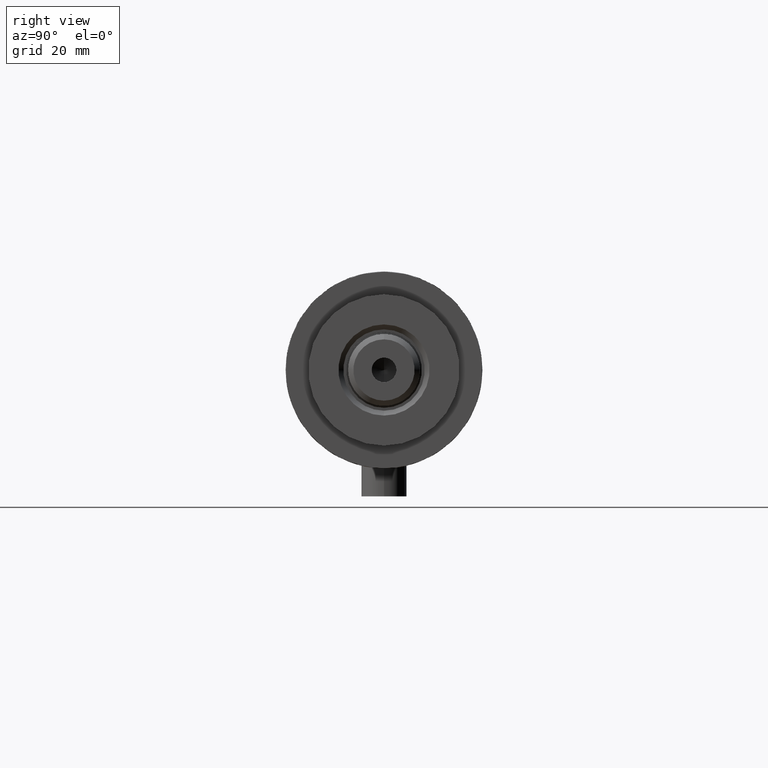
[diagram: clean part render]
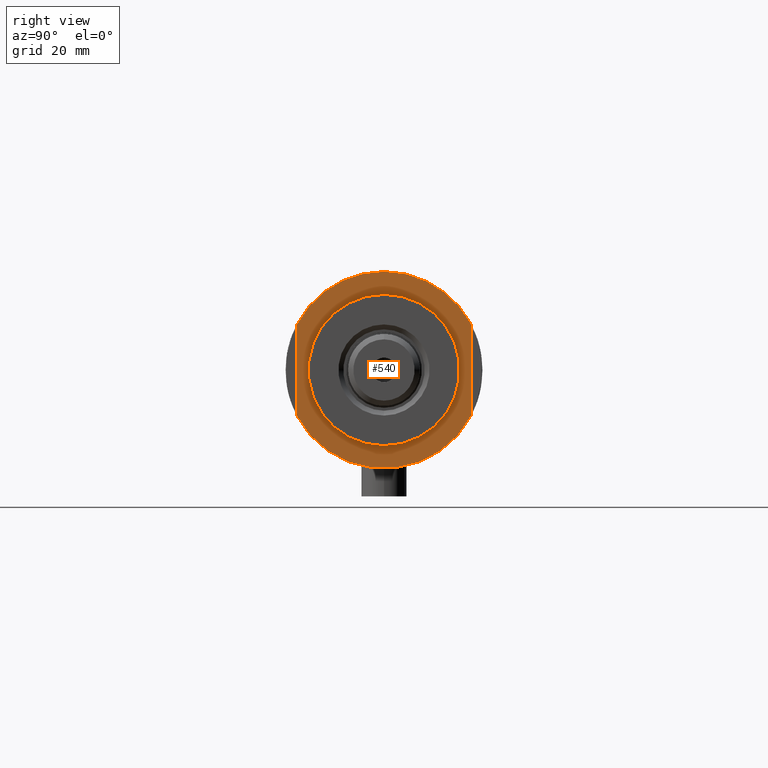
[diagram: same view with one face highlighted and labeled with its STEP entity id]
A machine part, right view. The second image highlights one B-rep face of the part: STEP entity #540.
In plain terms, the highlighted planar face has unit normal (1, 0, -0).
Its self-contained STEP definition (entity closure, byte-faithful):
#13 = DIRECTION ( 'NONE',  ( 1.000000000000000000, 0.000000000000000000, 0.000000000000000000 ) ) ;
#37 = CIRCLE ( 'NONE', #1951, 20.00000000000000000 ) ;
#38 = CARTESIAN_POINT ( 'NONE',  ( 0.000000000000000000, 0.000000000000000000, 15.50000000000000000 ) ) ;
#182 = ORIENTED_EDGE ( 'NONE', *, *, #1118, .T. ) ;
#203 = EDGE_CURVE ( 'NONE', #3485, #291, #37, .T. ) ;
#228 = CARTESIAN_POINT ( 'NONE',  ( 0.000000000000000000, 0.000000000000000000, 15.50000000000000000 ) ) ;
#286 = CARTESIAN_POINT ( 'NONE',  ( -12.12435565298215145, -22.99999999999999645, 15.50000000000000000 ) ) ;
#291 = VERTEX_POINT ( 'NONE', #4531 ) ;
#344 = VERTEX_POINT ( 'NONE', #3799 ) ;
#360 = ORIENTED_EDGE ( 'NONE', *, *, #2401, .T. ) ;
#533 = ORIENTED_EDGE ( 'NONE', *, *, #1587, .F. ) ;
#540 = ADVANCED_FACE ( 'NONE', ( #3999, #4143 ), #1200, .T. ) ;
#723 = DIRECTION ( 'NONE',  ( -1.000000000000000000, -0.000000000000000000, -0.000000000000000000 ) ) ;
#838 = DIRECTION ( 'NONE',  ( 0.000000000000000000, 0.000000000000000000, 1.000000000000000000 ) ) ;
#970 = CARTESIAN_POINT ( 'NONE',  ( 0.000000000000000000, 0.000000000000000000, 15.50000000000000000 ) ) ;
#1016 = EDGE_LOOP ( 'NONE', ( #533, #4061, #3821, #182, #360 ) ) ;
#1087 = LINE ( 'NONE', #286, #2188 ) ;
#1118 = EDGE_CURVE ( 'NONE', #1323, #5130, #2220, .T. ) ;
#1196 = CARTESIAN_POINT ( 'NONE',  ( -12.12435565298215145, 23.00000000000000355, 15.50000000000000000 ) ) ;
#1200 = PLANE ( 'NONE',  #4826 ) ;
#1323 = VERTEX_POINT ( 'NONE', #3228 ) ;
#1536 = CARTESIAN_POINT ( 'NONE',  ( 0.000000000000000000, 0.000000000000000000, 15.50000000000000000 ) ) ;
#1587 = EDGE_CURVE ( 'NONE', #1639, #4187, #1087, .T. ) ;
#1639 = VERTEX_POINT ( 'NONE', #5127 ) ;
#1661 = CARTESIAN_POINT ( 'NONE',  ( 20.00000000000000000, 0.000000000000000000, 15.50000000000000000 ) ) ;
#1693 = DIRECTION ( 'NONE',  ( 0.000000000000000000, 0.000000000000000000, 1.000000000000000000 ) ) ;
#1879 = AXIS2_PLACEMENT_3D ( 'NONE', #970, #3794, #4980 ) ;
#1885 = AXIS2_PLACEMENT_3D ( 'NONE', #38, #4030, #13 ) ;
#1950 = DIRECTION ( 'NONE',  ( 1.000000000000000000, 0.000000000000000000, 0.000000000000000000 ) ) ;
#1951 = AXIS2_PLACEMENT_3D ( 'NONE', #228, #3459, #2638 ) ;
#2188 = VECTOR ( 'NONE', #723, 1000.000000000000000 ) ;
#2220 = CIRCLE ( 'NONE', #1879, 26.00000000000000355 ) ;
#2338 = ORIENTED_EDGE ( 'NONE', *, *, #3250, .T. ) ;
#2401 = EDGE_CURVE ( 'NONE', #5130, #4187, #2808, .T. ) ;
#2638 = DIRECTION ( 'NONE',  ( 1.000000000000000000, 0.000000000000000000, 0.000000000000000000 ) ) ;
#2736 = LINE ( 'NONE', #1196, #5120 ) ;
#2808 = CIRCLE ( 'NONE', #1885, 26.00000000000000355 ) ;
#2811 = CARTESIAN_POINT ( 'NONE',  ( 0.000000000000000000, 0.000000000000000000, 15.50000000000000000 ) ) ;
#3014 = AXIS2_PLACEMENT_3D ( 'NONE', #3688, #838, #4498 ) ;
#3051 = DIRECTION ( 'NONE',  ( -0.000000000000000000, -0.000000000000000000, -1.000000000000000000 ) ) ;
#3228 = CARTESIAN_POINT ( 'NONE',  ( -12.12435565298214613, 23.00000000000000355, 15.50000000000000000 ) ) ;
#3250 = EDGE_CURVE ( 'NONE', #291, #3485, #4839, .T. ) ;
#3459 = DIRECTION ( 'NONE',  ( -0.000000000000000000, -0.000000000000000000, -1.000000000000000000 ) ) ;
#3485 = VERTEX_POINT ( 'NONE', #1661 ) ;
#3578 = EDGE_LOOP ( 'NONE', ( #4438, #2338 ) ) ;
#3688 = CARTESIAN_POINT ( 'NONE',  ( 0.000000000000000000, 0.000000000000000000, 15.50000000000000000 ) ) ;
#3794 = DIRECTION ( 'NONE',  ( 0.000000000000000000, 0.000000000000000000, 1.000000000000000000 ) ) ;
#3799 = CARTESIAN_POINT ( 'NONE',  ( 12.12435565298214790, 23.00000000000000355, 15.50000000000000000 ) ) ;
#3821 = ORIENTED_EDGE ( 'NONE', *, *, #4955, .F. ) ;
#3999 = FACE_BOUND ( 'NONE', #3578, .T. ) ;
#4030 = DIRECTION ( 'NONE',  ( 0.000000000000000000, 0.000000000000000000, 1.000000000000000000 ) ) ;
#4061 = ORIENTED_EDGE ( 'NONE', *, *, #5105, .T. ) ;
#4118 = DIRECTION ( 'NONE',  ( 1.000000000000000000, 0.000000000000000000, -0.000000000000000000 ) ) ;
#4143 = FACE_OUTER_BOUND ( 'NONE', #1016, .T. ) ;
#4187 = VERTEX_POINT ( 'NONE', #5092 ) ;
#4342 = DIRECTION ( 'NONE',  ( 1.000000000000000000, 0.000000000000000000, 0.000000000000000000 ) ) ;
#4438 = ORIENTED_EDGE ( 'NONE', *, *, #203, .T. ) ;
#4473 = CARTESIAN_POINT ( 'NONE',  ( -26.00000000000000355, 0.000000000000000000, 15.50000000000000000 ) ) ;
#4498 = DIRECTION ( 'NONE',  ( 1.000000000000000000, 0.000000000000000000, 0.000000000000000000 ) ) ;
#4531 = CARTESIAN_POINT ( 'NONE',  ( -20.00000000000000000, 2.449293598294706513E-15, 15.50000000000000000 ) ) ;
#4595 = AXIS2_PLACEMENT_3D ( 'NONE', #1536, #3051, #1950 ) ;
#4826 = AXIS2_PLACEMENT_3D ( 'NONE', #2811, #1693, #4118 ) ;
#4839 = CIRCLE ( 'NONE', #4595, 20.00000000000000000 ) ;
#4856 = CIRCLE ( 'NONE', #3014, 26.00000000000000355 ) ;
#4955 = EDGE_CURVE ( 'NONE', #1323, #344, #2736, .T. ) ;
#4980 = DIRECTION ( 'NONE',  ( 1.000000000000000000, 0.000000000000000000, 0.000000000000000000 ) ) ;
#5092 = CARTESIAN_POINT ( 'NONE',  ( -12.12435565298215323, -22.99999999999999645, 15.50000000000000000 ) ) ;
#5105 = EDGE_CURVE ( 'NONE', #1639, #344, #4856, .T. ) ;
#5120 = VECTOR ( 'NONE', #4342, 1000.000000000000000 ) ;
#5127 = CARTESIAN_POINT ( 'NONE',  ( 12.12435565298215323, -22.99999999999999645, 15.50000000000000000 ) ) ;
#5130 = VERTEX_POINT ( 'NONE', #4473 ) ;